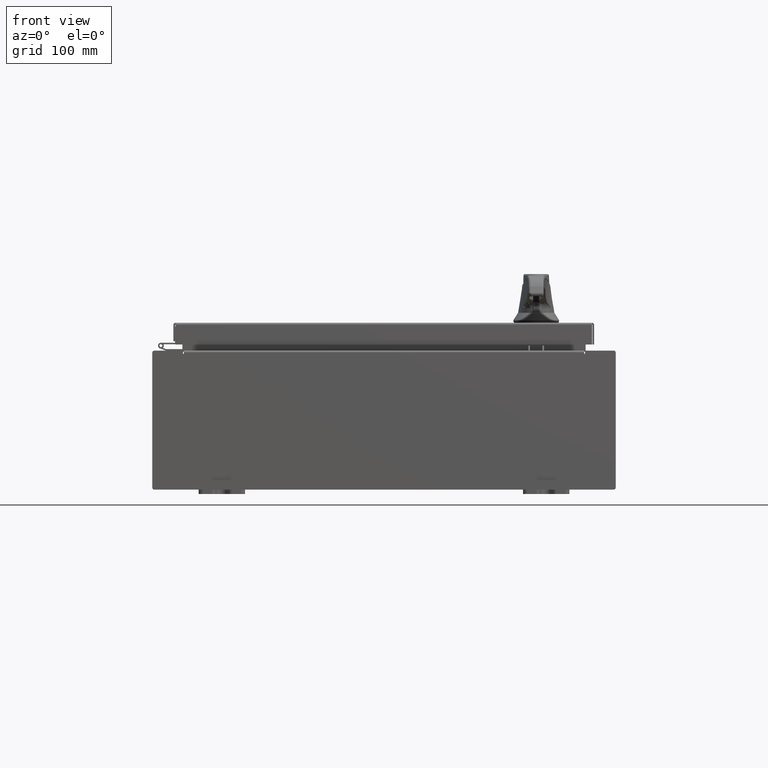
[diagram: clean part render]
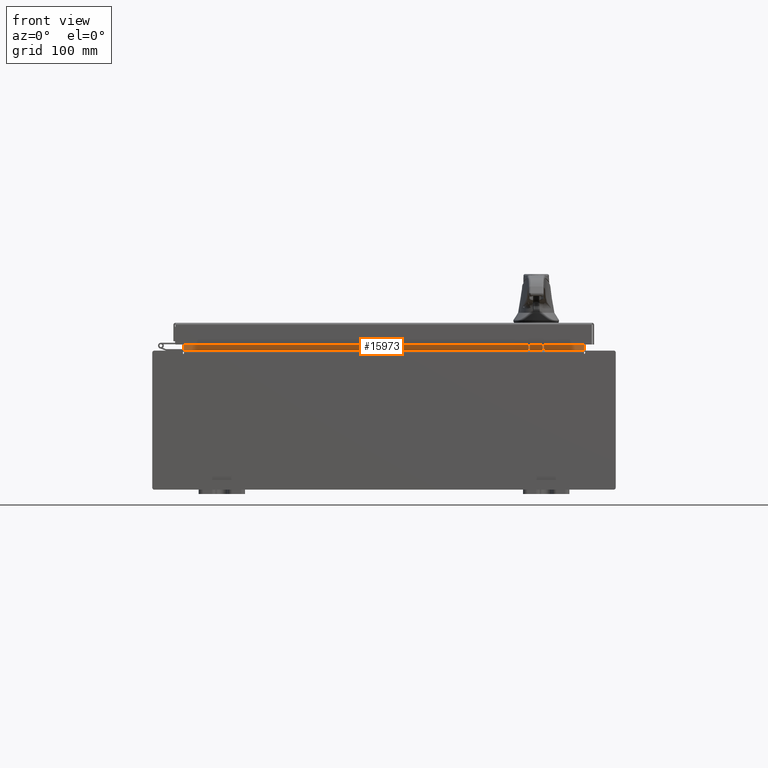
[diagram: same view with one face highlighted and labeled with its STEP entity id]
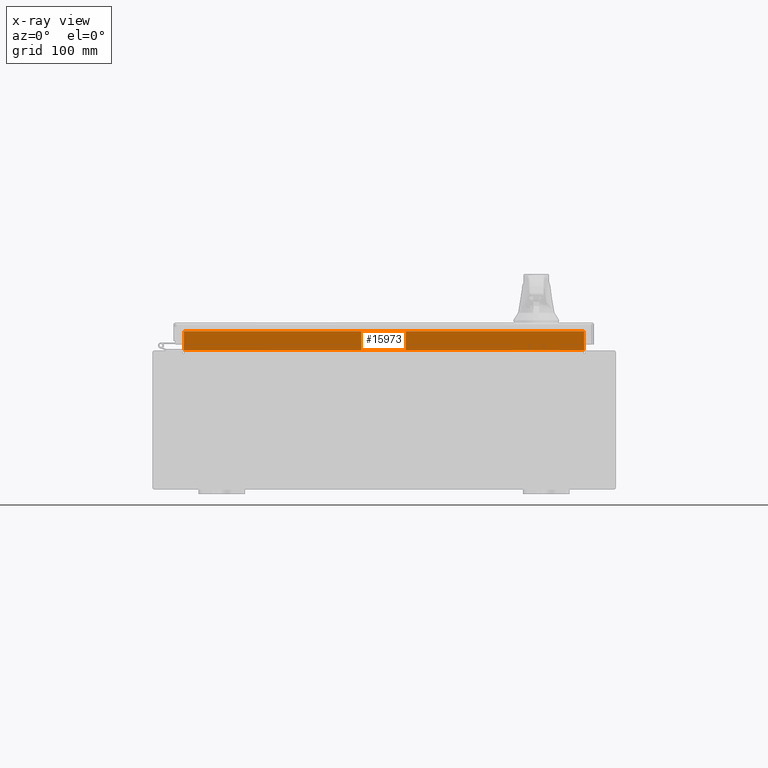
[diagram: x-ray of the same camera — body ghosted, the highlighted face saturated]
A machine part, front view. The second image highlights one B-rep face of the part: STEP entity #15973.
The next image is the same camera in x-ray: the body ghosted, the highlighted face saturated — about 0% of this face is hidden behind the body in this view.
In plain terms, the highlighted planar face has unit normal (0, -1, 0).
Its self-contained STEP definition (entity closure, byte-faithful):
#1698 = CARTESIAN_POINT ( 'NONE',  ( 8.637200000000000000, -1.300299999999999800, 3.837600000000005000 ) ) ;
#2470 = EDGE_LOOP ( 'NONE', ( #97478, #55638, #65668, #100621 ) ) ;
#3374 = VECTOR ( 'NONE', #89972, 39.37007874015748100 ) ;
#3640 = CARTESIAN_POINT ( 'NONE',  ( -8.637200000000000000, -1.300299999999999800, 3.013000000000004800 ) ) ;
#4889 = DIRECTION ( 'NONE',  ( 0.0000000000000000000, 1.000000000000000000, 0.0000000000000000000 ) ) ;
#7012 = DIRECTION ( 'NONE',  ( -1.000000000000000000, -0.0000000000000000000, -0.0000000000000000000 ) ) ;
#7777 = VECTOR ( 'NONE', #95412, 39.37007874015748100 ) ;
#13417 = DIRECTION ( 'NONE',  ( -0.0000000000000000000, -0.0000000000000000000, -1.000000000000000000 ) ) ;
#15973 = ADVANCED_FACE ( 'NONE', ( #24484 ), #80501, .T. ) ;
#18675 = CARTESIAN_POINT ( 'NONE',  ( 8.637199999999996400, -1.300299999999999800, 3.013000000000004800 ) ) ;
#19486 = AXIS2_PLACEMENT_3D ( 'NONE', #97430, #4889, #63844 ) ;
#24484 = FACE_OUTER_BOUND ( 'NONE', #2470, .T. ) ;
#28447 = EDGE_CURVE ( 'NONE', #99115, #39942, #48335, .T. ) ;
#30938 = CARTESIAN_POINT ( 'NONE',  ( -8.637200000000000000, -1.300299999999999800, 3.013000000000005200 ) ) ;
#35668 = EDGE_CURVE ( 'NONE', #48878, #99115, #82987, .T. ) ;
#37355 = VECTOR ( 'NONE', #13417, 39.37007874015748100 ) ;
#38478 = CARTESIAN_POINT ( 'NONE',  ( -8.637200000000000000, -1.300299999999999800, 3.000000000000005300 ) ) ;
#39942 = VERTEX_POINT ( 'NONE', #60702 ) ;
#41257 = CARTESIAN_POINT ( 'NONE',  ( 8.637200000000000000, -1.300300000000000000, 3.837600000000005000 ) ) ;
#41857 = EDGE_CURVE ( 'NONE', #58075, #48878, #87800, .T. ) ;
#48335 = LINE ( 'NONE', #41257, #68121 ) ;
#48878 = VERTEX_POINT ( 'NONE', #18675 ) ;
#55638 = ORIENTED_EDGE ( 'NONE', *, *, #28447, .F. ) ;
#58075 = VERTEX_POINT ( 'NONE', #3640 ) ;
#60702 = CARTESIAN_POINT ( 'NONE',  ( -8.637200000000000000, -1.300300000000000000, 3.837600000000005000 ) ) ;
#62416 = LINE ( 'NONE', #38478, #37355 ) ;
#63844 = DIRECTION ( 'NONE',  ( 0.0000000000000000000, -0.0000000000000000000, 1.000000000000000000 ) ) ;
#65668 = ORIENTED_EDGE ( 'NONE', *, *, #35668, .F. ) ;
#68121 = VECTOR ( 'NONE', #7012, 39.37007874015748100 ) ;
#78452 = CARTESIAN_POINT ( 'NONE',  ( 8.637200000000000000, -1.300299999999999800, 3.925300000000005300 ) ) ;
#80501 = PLANE ( 'NONE',  #19486 ) ;
#82987 = LINE ( 'NONE', #78452, #7777 ) ;
#85782 = EDGE_CURVE ( 'NONE', #39942, #58075, #62416, .T. ) ;
#87800 = LINE ( 'NONE', #30938, #3374 ) ;
#89972 = DIRECTION ( 'NONE',  ( 1.000000000000000000, 0.0000000000000000000, -6.325772226333218300E-017 ) ) ;
#95412 = DIRECTION ( 'NONE',  ( -0.0000000000000000000, -0.0000000000000000000, 1.000000000000000000 ) ) ;
#97430 = CARTESIAN_POINT ( 'NONE',  ( 0.0000000000000000000, -1.300299999999999800, 0.0000000000000000000 ) ) ;
#97478 = ORIENTED_EDGE ( 'NONE', *, *, #85782, .F. ) ;
#99115 = VERTEX_POINT ( 'NONE', #1698 ) ;
#100621 = ORIENTED_EDGE ( 'NONE', *, *, #41857, .F. ) ;